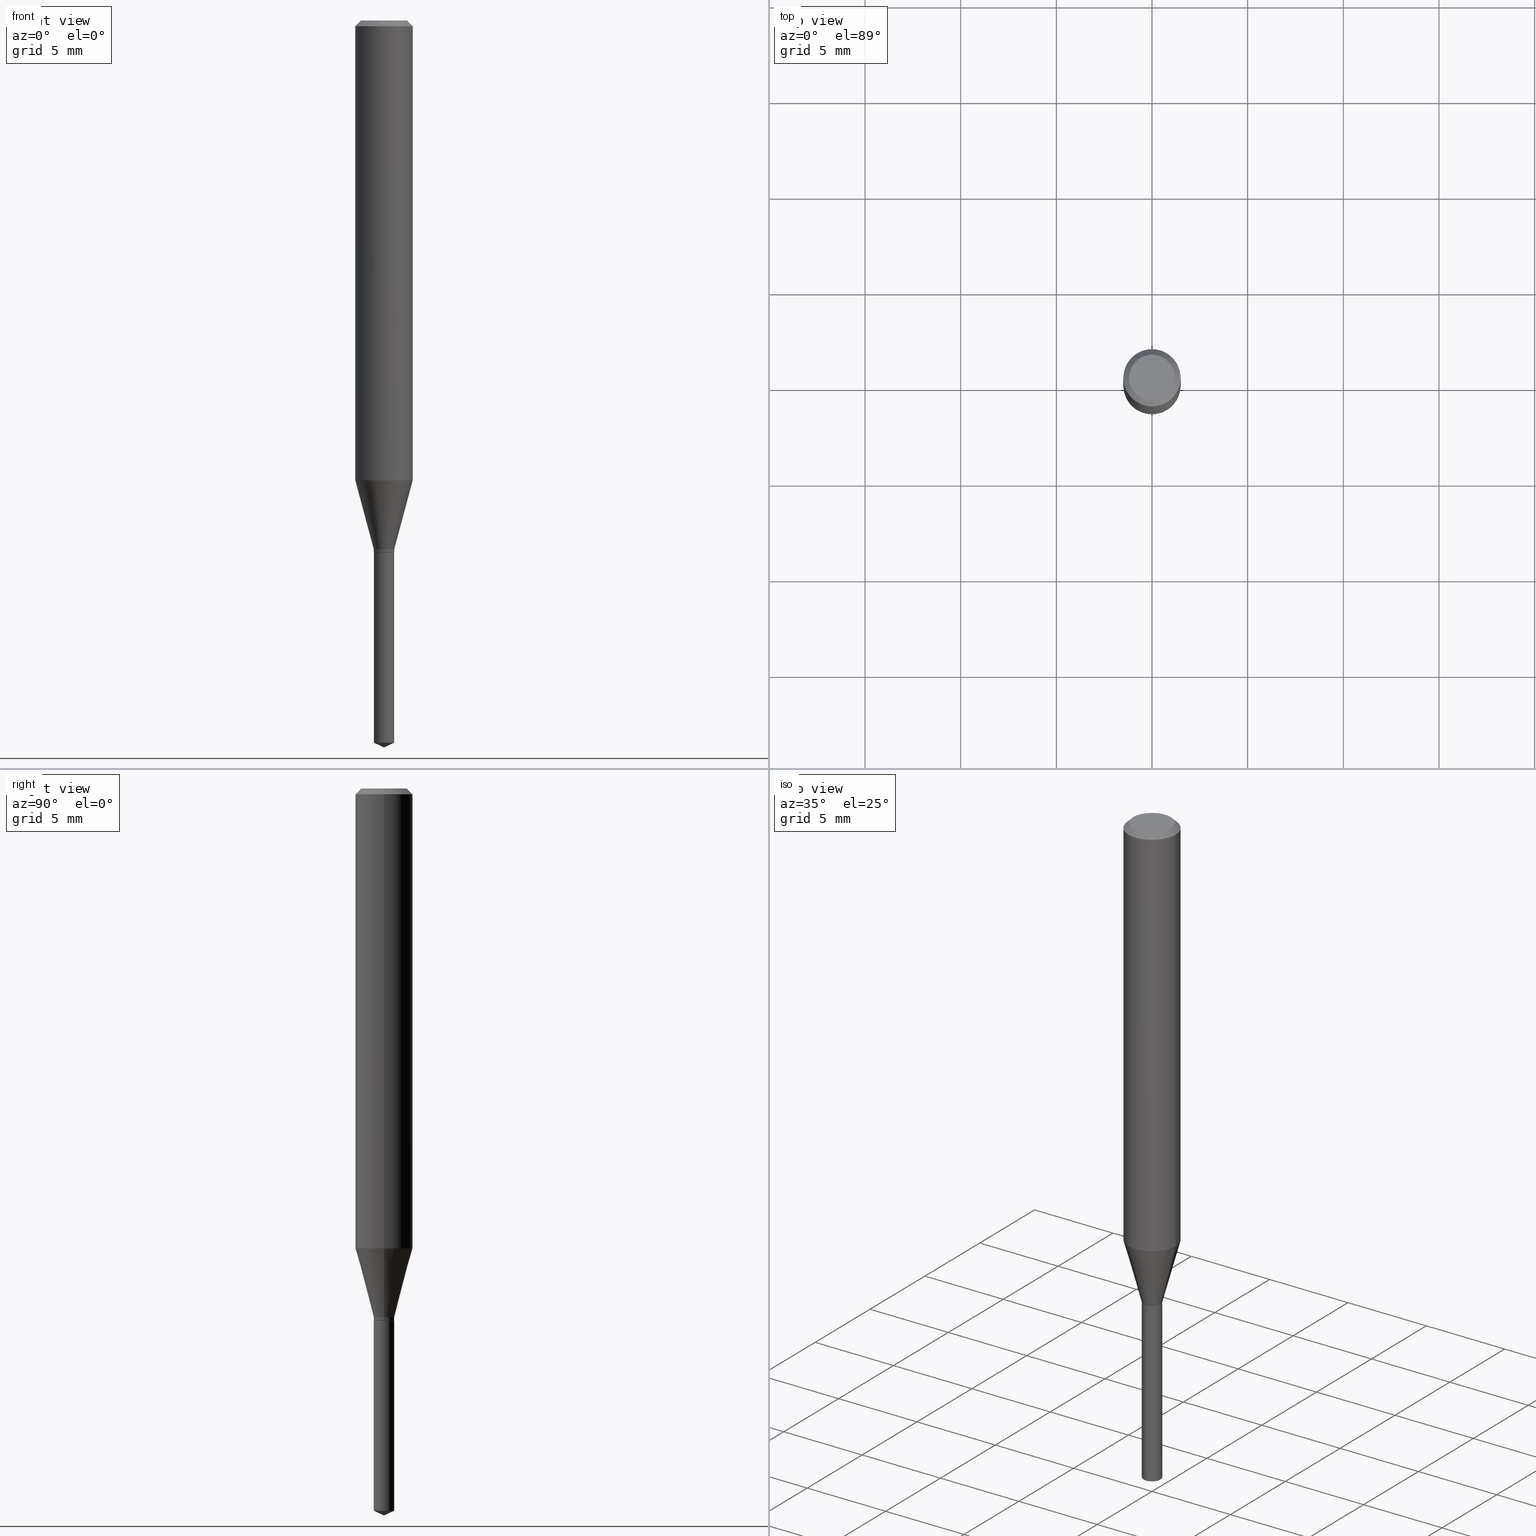
[diagram: canonical four-view strip — front | top / right | iso, engineering-drawing reading convention]
A machine part, canonical four-view strip (front | top / right | iso — engineering-drawing reading convention). The complete STEP part file that produces these views, byte-faithful:
ISO-10303-21;
HEADER;
FILE_DESCRIPTION (( 'STEP AP203' ),
    '1' );
FILE_NAME ('07833.STEP',
    '2024-04-24T04:04:17',
    ( '' ),
    ( '' ),
    'SwSTEP 2.0',
    'SolidWorks 2023',
    '' );
FILE_SCHEMA (( 'CONFIG_CONTROL_DESIGN' ));
ENDSEC;

DATA;
#1 = CARTESIAN_POINT ( 'NONE',  ( 2.888098660104664642E-31, -4.123439461173780879E-17, -0.01181000000000007565 ) ) ;
#2 = DIRECTION ( 'NONE',  ( -2.445468806185136877E-29, 3.491481338843145188E-15, 1.000000000000000000 ) ) ;
#3 = ORIENTED_EDGE ( 'NONE', *, *, #337, .T. ) ;
#4 = AXIS2_PLACEMENT_3D ( 'NONE', #1, #67, #483 ) ;
#5 = AXIS2_PLACEMENT_3D ( 'NONE', #137, #60, #446 ) ;
#6 = ORIENTED_EDGE ( 'NONE', *, *, #249, .F. ) ;
#7 = PLANE ( 'NONE',  #299 ) ;
#8 = DIRECTION ( 'NONE',  ( 1.000000000000000000, -6.982962677686254878E-15, 0.000000000000000000 ) ) ;
#9 = DIRECTION ( 'NONE',  ( 1.000000000000000000, -6.982962677686266711E-15, 4.876185090822587894E-29 ) ) ;
#10 = EDGE_CURVE ( 'NONE', #353, #206, #29, .T. ) ;
#11 = VERTEX_POINT ( 'NONE', #290 ) ;
#12 = FACE_OUTER_BOUND ( 'NONE', #17, .T. ) ;
#13 = AXIS2_PLACEMENT_3D ( 'NONE', #444, #364, #286 ) ;
#14 = EDGE_LOOP ( 'NONE', ( #388, #338, #309, #311 ) ) ;
#15 = ORIENTED_EDGE ( 'NONE', *, *, #298, .F. ) ;
#16 = VERTEX_POINT ( 'NONE', #322 ) ;
#17 = EDGE_LOOP ( 'NONE', ( #21, #459 ) ) ;
#18 = AXIS2_PLACEMENT_3D ( 'NONE', #412, #163, #426 ) ;
#19 = PERSON_AND_ORGANIZATION ( #456, #26 ) ;
#20 = ADVANCED_FACE ( 'NONE', ( #143 ), #258, .T. ) ;
#21 = ORIENTED_EDGE ( 'NONE', *, *, #295, .T. ) ;
#22 = FACE_OUTER_BOUND ( 'NONE', #305, .T. ) ;
#23 = FACE_OUTER_BOUND ( 'NONE', #80, .T. ) ;
#24 = DIMENSIONAL_EXPONENTS ( 1.000000000000000000, 0.000000000000000000, 0.000000000000000000, 0.000000000000000000, 0.000000000000000000, 0.000000000000000000, 0.000000000000000000 ) ;
#25 = VECTOR ( 'NONE', #2, 39.37007874015748143 ) ;
#26 = ORGANIZATION ( 'UNSPECIFIED', 'UNSPECIFIED', '' ) ;
#27 = DIRECTION ( 'NONE',  ( 1.000000000000000000, -6.982962677686255667E-15, 0.000000000000000000 ) ) ;
#28 = APPROVAL_STATUS ( 'not_yet_approved' ) ;
#29 = CIRCLE ( 'NONE', #5, 0.05905000000000000526 ) ;
#30 = DIRECTION ( 'NONE',  ( -0.2588190451025212391, 5.211531920934549464E-15, 0.9659258262890679791 ) ) ;
#31 = CARTESIAN_POINT ( 'NONE',  ( -0.05905000000000000526, -1.253179379049500604E-15, -0.01181000000000007565 ) ) ;
#32 = DATE_TIME_ROLE ( 'classification_date' ) ;
#33 = EDGE_LOOP ( 'NONE', ( #180, #351, #150, #451 ) ) ;
#34 = CARTESIAN_POINT ( 'NONE',  ( 3.658667988020872822E-29, -5.223602213574301462E-15, -1.496099999999999985 ) ) ;
#35 = ORIENTED_EDGE ( 'NONE', *, *, #93, .T. ) ;
#36 = AXIS2_PLACEMENT_3D ( 'NONE', #489, #247, #232 ) ;
#37 = MANIFOLD_SOLID_BREP ( 'Body-Move/Copy2[1]', #237 ) ;
#38 = VERTEX_POINT ( 'NONE', #410 ) ;
#39 = VERTEX_POINT ( 'NONE', #318 ) ;
#40 = MANIFOLD_SOLID_BREP ( 'Body-Move/Copy2[2]', #423 ) ;
#41 = LOCAL_TIME ( 0, 4, 17.00000000000000000, #449 ) ;
#42 = ORIENTED_EDGE ( 'NONE', *, *, #208, .F. ) ;
#43 = ORIENTED_EDGE ( 'NONE', *, *, #139, .T. ) ;
#44 = LINE ( 'NONE', #111, #392 ) ;
#45 = EDGE_LOOP ( 'NONE', ( #158, #146, #131 ) ) ;
#46 = AXIS2_PLACEMENT_3D ( 'NONE', #99, #376, #246 ) ;
#47 = CIRCLE ( 'NONE', #369, 0.05905000000000000526 ) ;
#48 = EDGE_LOOP ( 'NONE', ( #160, #352 ) ) ;
#49 = ORIENTED_EDGE ( 'NONE', *, *, #384, .T. ) ;
#50 = EDGE_LOOP ( 'NONE', ( #128, #230, #296, #303 ) ) ;
#51 = CARTESIAN_POINT ( 'NONE',  ( 2.676565608369631794E-29, -3.821426325363822773E-15, -1.094499999999999806 ) ) ;
#52 = CALENDAR_DATE ( 2024, 24, 4 ) ;
#53 = ORIENTED_EDGE ( 'NONE', *, *, #145, .T. ) ;
#54 = AXIS2_PLACEMENT_3D ( 'NONE', #469, #123, #276 ) ;
#55 = EDGE_CURVE ( 'NONE', #467, #104, #474, .T. ) ;
#56 = VERTEX_POINT ( 'NONE', #281 ) ;
#57 = CARTESIAN_POINT ( 'NONE',  ( -0.02105000000000000621, 1.495692458775011332E-16, -1.035435836498657894E-30 ) ) ;
#58 = VERTEX_POINT ( 'NONE', #291 ) ;
#59 = EDGE_CURVE ( 'NONE', #71, #428, #441, .T. ) ;
#60 = DIRECTION ( 'NONE',  ( -2.445468806185136597E-29, 3.491481338843145583E-15, 1.000000000000000000 ) ) ;
#61 = PERSON_AND_ORGANIZATION ( #456, #26 ) ;
#62 = AXIS2_PLACEMENT_3D ( 'NONE', #271, #82, #233 ) ;
#63 = CC_DESIGN_APPROVAL ( #465, ( #368 ) ) ;
#64 = LINE ( 'NONE', #57, #349 ) ;
#65 = ADVANCED_FACE ( 'NONE', ( #23 ), #75, .T. ) ;
#66 = CYLINDRICAL_SURFACE ( 'NONE', #153, 0.02105000000000000621 ) ;
#67 = DIRECTION ( 'NONE',  ( 2.445468806185136597E-29, -3.491481338843145583E-15, -1.000000000000000000 ) ) ;
#68 = CC_DESIGN_PERSON_AND_ORGANIZATION_ASSIGNMENT ( #283, #372, ( #368 ) ) ;
#69 = ORIENTED_EDGE ( 'NONE', *, *, #227, .T. ) ;
#70 = LINE ( 'NONE', #148, #273 ) ;
#71 = VERTEX_POINT ( 'NONE', #219 ) ;
#72 = CARTESIAN_POINT ( 'NONE',  ( 3.658664905062460986E-29, -5.223606628546217219E-15, -1.496099999999999985 ) ) ;
#73 = ADVANCED_FACE ( 'NONE', ( #455 ), #431, .T. ) ;
#74 = VECTOR ( 'NONE', #161, 39.37007874015748143 ) ;
#75 = CONICAL_SURFACE ( 'NONE', #261, 0.02054999999999999882, 0.7853981633974184140 ) ;
#76 = ORIENTED_EDGE ( 'NONE', *, *, #394, .F. ) ;
#77 = DIRECTION ( 'NONE',  ( -2.445470214571802116E-29, 3.491479321953280158E-15, 1.000000000000000000 ) ) ;
#78 = CARTESIAN_POINT ( 'NONE',  ( 2.675342873966538993E-29, -3.819680584694400481E-15, -1.093999999999999861 ) ) ;
#79 = DIRECTION ( 'NONE',  ( -2.445468806185136597E-29, 3.491481338843145583E-15, 1.000000000000000000 ) ) ;
#80 = EDGE_LOOP ( 'NONE', ( #162, #419, #171, #15 ) ) ;
#81 = AXIS2_PLACEMENT_3D ( 'NONE', #244, #366, #27 ) ;
#82 = DIRECTION ( 'NONE',  ( -2.445470214571802116E-29, 3.491479321953280158E-15, 1.000000000000000000 ) ) ;
#83 = UNCERTAINTY_MEASURE_WITH_UNIT (LENGTH_MEASURE( 1.000000000000000082E-05 ), #490, 'distance_accuracy_value', 'NONE');
#84 = DIRECTION ( 'NONE',  ( 6.982962677686265922E-15, 1.000000000000000000, -3.491479321953280158E-15 ) ) ;
#85 = ADVANCED_FACE ( 'NONE', ( #189 ), #66, .T. ) ;
#86 = APPLICATION_PROTOCOL_DEFINITION ( 'international standard', 'config_control_design', 1994, #362 ) ;
#87 = CIRCLE ( 'NONE', #62, 0.02104999999999999927 ) ;
#88 = EDGE_LOOP ( 'NONE', ( #240, #97, #397 ) ) ;
#89 = ADVANCED_FACE ( 'NONE', ( #106 ), #127, .T. ) ;
#90 = CARTESIAN_POINT ( 'NONE',  ( 0.000000000000000000, 0.000000000000000000, 0.000000000000000000 ) ) ;
#91 = APPROVAL_ROLE ( '' ) ;
#92 = DIRECTION ( 'NONE',  ( 2.438088387897960049E-29, -3.491481338843145188E-15, -1.000000000000000000 ) ) ;
#93 = EDGE_CURVE ( 'NONE', #56, #206, #407, .T. ) ;
#94 = LOCAL_TIME ( 0, 4, 17.00000000000000000, #471 ) ;
#95 = ORIENTED_EDGE ( 'NONE', *, *, #175, .T. ) ;
#96 = DIRECTION ( 'NONE',  ( 1.000000000000000000, -6.982962677686266711E-15, 0.000000000000000000 ) ) ;
#97 = ORIENTED_EDGE ( 'NONE', *, *, #255, .T. ) ;
#98 = PERSON_AND_ORGANIZATION_ROLE ( 'classification_officer' ) ;
#99 = CARTESIAN_POINT ( 'NONE',  ( 2.676565608369631794E-29, -3.821426325363822773E-15, -1.094499999999999806 ) ) ;
#100 = CARTESIAN_POINT ( 'NONE',  ( -1.469913643652595637E-16, -0.02105000000000518956, -1.486284223795837134 ) ) ;
#101 = DIRECTION ( 'NONE',  ( 1.000000000000000000, -6.982962677686257244E-15, 0.000000000000000000 ) ) ;
#102 = AXIS2_PLACEMENT_3D ( 'NONE', #215, #254, #393 ) ;
#103 = DIRECTION ( 'NONE',  ( -1.000000000000000000, 6.982962677686265922E-15, 0.000000000000000000 ) ) ;
#104 = VERTEX_POINT ( 'NONE', #186 ) ;
#105 = LINE ( 'NONE', #194, #25 ) ;
#106 = FACE_OUTER_BOUND ( 'NONE', #242, .T. ) ;
#107 = CARTESIAN_POINT ( 'NONE',  ( 0.02104999999999999927, -3.946421357294406373E-15, -1.088199999999999834 ) ) ;
#108 = APPROVAL_STATUS ( 'not_yet_approved' ) ;
#109 = LENGTH_MEASURE_WITH_UNIT ( LENGTH_MEASURE( 0.02539999999999999897 ), #336 );
#110 = DIRECTION ( 'NONE',  ( 1.000000000000000000, -6.982962677686268288E-15, 0.000000000000000000 ) ) ;
#111 = CARTESIAN_POINT ( 'NONE',  ( -0.02054999999999999882, -3.675409793165121700E-15, -1.094499999999999806 ) ) ;
#112 = FACE_OUTER_BOUND ( 'NONE', #88, .T. ) ;
#113 =( NAMED_UNIT ( * ) SI_UNIT ( $, .STERADIAN. ) SOLID_ANGLE_UNIT ( ) );
#114 = AXIS2_PLACEMENT_3D ( 'NONE', #370, #325, #101 ) ;
#115 = DIRECTION ( 'NONE',  ( -6.982962677686267499E-15, -1.000000000000000000, 0.000000000000000000 ) ) ;
#116 = CC_DESIGN_DATE_AND_TIME_ASSIGNMENT ( #404, #32, ( #167 ) ) ;
#117 = AXIS2_PLACEMENT_3D ( 'NONE', #243, #411, #408 ) ;
#119 = CARTESIAN_POINT ( 'NONE',  ( 8.265746106709734507E-48, -1.180129479067563789E-33, -3.380025165646692144E-19 ) ) ;
#118 = APPROVAL ( #470, 'UNSPECIFIED' ) ;
#120 = ORIENTED_EDGE ( 'NONE', *, *, #418, .F. ) ;
#121 = CARTESIAN_POINT ( 'NONE',  ( 2.676565608369631794E-29, -3.821426325363822773E-15, -1.094499999999999806 ) ) ;
#122 = ORIENTED_EDGE ( 'NONE', *, *, #298, .T. ) ;
#123 = DIRECTION ( 'NONE',  ( -2.445470214571802116E-29, 3.491479321953280158E-15, 1.000000000000000000 ) ) ;
#124 = CYLINDRICAL_SURFACE ( 'NONE', #54, 0.02104999999999999927 ) ;
#125 = AXIS2_PLACEMENT_3D ( 'NONE', #383, #202, #348 ) ;
#126 = AXIS2_PLACEMENT_3D ( 'NONE', #119, #195, #9 ) ;
#127 = CONICAL_SURFACE ( 'NONE', #114, 0.02104999999999999927, 0.2617993877991499629 ) ;
#128 = ORIENTED_EDGE ( 'NONE', *, *, #249, .T. ) ;
#129 = CYLINDRICAL_SURFACE ( 'NONE', #144, 0.02105000000000000621 ) ;
#130 = CALENDAR_DATE ( 2024, 24, 4 ) ;
#131 = ORIENTED_EDGE ( 'NONE', *, *, #59, .F. ) ;
#132 = DIRECTION ( 'NONE',  ( -2.445468806185136597E-29, 3.491481338843145583E-15, 1.000000000000000000 ) ) ;
#133 = CYLINDRICAL_SURFACE ( 'NONE', #151, 0.02104999999999999927 ) ;
#134 = CC_DESIGN_PERSON_AND_ORGANIZATION_ASSIGNMENT ( #234, #315, ( #231 ) ) ;
#135 = CARTESIAN_POINT ( 'NONE',  ( -0.02104999999999999927, -3.649860747051609857E-15, -1.088199999999999834 ) ) ;
#136 = AXIS2_PLACEMENT_3D ( 'NONE', #409, #92, #282 ) ;
#137 = CARTESIAN_POINT ( 'NONE',  ( 2.888098660104664642E-31, -4.123439461173780879E-17, -0.01181000000000007565 ) ) ;
#138 = CARTESIAN_POINT ( 'NONE',  ( 0.000000000000000000, 0.000000000000000000, 0.000000000000000000 ) ) ;
#139 = EDGE_CURVE ( 'NONE', #206, #353, #47, .T. ) ;
#140 = DIRECTION ( 'NONE',  ( 1.000000000000000000, -6.982962677686266711E-15, 4.876176775795936353E-29 ) ) ;
#141 = DIRECTION ( 'NONE',  ( -2.445468806185136597E-29, 3.491481338843145583E-15, 1.000000000000000000 ) ) ;
#142 = PLANE ( 'NONE',  #136 ) ;
#143 = FACE_OUTER_BOUND ( 'NONE', #266, .T. ) ;
#144 = AXIS2_PLACEMENT_3D ( 'NONE', #436, #132, #248 ) ;
#145 = EDGE_CURVE ( 'NONE', #39, #228, #275, .T. ) ;
#146 = ORIENTED_EDGE ( 'NONE', *, *, #334, .T. ) ;
#147 =( NAMED_UNIT ( * ) PLANE_ANGLE_UNIT ( ) SI_UNIT ( $, .RADIAN. ) );
#148 = CARTESIAN_POINT ( 'NONE',  ( -0.05905000000000006771, 4.195754854663396409E-16, -2.904631170795525045E-30 ) ) ;
#149 = CARTESIAN_POINT ( 'NONE',  ( 0.02054999999999999882, -3.964926208390275100E-15, -1.094499999999999806 ) ) ;
#150 = ORIENTED_EDGE ( 'NONE', *, *, #313, .T. ) ;
#151 = AXIS2_PLACEMENT_3D ( 'NONE', #450, #477, #442 ) ;
#152 = VECTOR ( 'NONE', #257, 39.37007874015748143 ) ;
#153 = AXIS2_PLACEMENT_3D ( 'NONE', #399, #332, #185 ) ;
#154 = ORIENTED_EDGE ( 'NONE', *, *, #473, .F. ) ;
#155 = EDGE_CURVE ( 'NONE', #71, #472, #268, .T. ) ;
#156 = EDGE_LOOP ( 'NONE', ( #178, #35, #43, #76 ) ) ;
#157 = CC_DESIGN_PERSON_AND_ORGANIZATION_ASSIGNMENT ( #396, #179, ( #368 ) ) ;
#158 = ORIENTED_EDGE ( 'NONE', *, *, #255, .F. ) ;
#159 = ADVANCED_FACE ( 'NONE', ( #328 ), #133, .T. ) ;
#160 = ORIENTED_EDGE ( 'NONE', *, *, #473, .T. ) ;
#161 = DIRECTION ( 'NONE',  ( -2.445470214571802396E-29, 3.491479321953280158E-15, 1.000000000000000000 ) ) ;
#162 = ORIENTED_EDGE ( 'NONE', *, *, #438, .F. ) ;
#163 = DIRECTION ( 'NONE',  ( -2.445470214571802116E-29, 3.491479321953280158E-15, 1.000000000000000000 ) ) ;
#164 = AXIS2_PLACEMENT_3D ( 'NONE', #51, #209, #176 ) ;
#165 = MECHANICAL_CONTEXT ( 'NONE', #362, 'mechanical' ) ;
#166 = ADVANCED_FACE ( 'NONE', ( #324 ), #377, .T. ) ;
#167 = SECURITY_CLASSIFICATION ( '', '', #484 ) ;
#168 = AXIS2_PLACEMENT_3D ( 'NONE', #251, #443, #140 ) ;
#169 = ORIENTED_EDGE ( 'NONE', *, *, #267, .T. ) ;
#170 = PLANE ( 'NONE',  #211 ) ;
#171 = ORIENTED_EDGE ( 'NONE', *, *, #278, .T. ) ;
#172 = DIRECTION ( 'NONE',  ( 0.000000000000000000, 0.000000000000000000, 1.000000000000000000 ) ) ;
#173 = ADVANCED_FACE ( 'NONE', ( #188 ), #7, .F. ) ;
#174 = CIRCLE ( 'NONE', #429, 0.05905000000000011628 ) ;
#175 = EDGE_CURVE ( 'NONE', #11, #467, #354, .T. ) ;
#176 = DIRECTION ( 'NONE',  ( -6.982962677686267499E-15, -1.000000000000000000, 6.488950103715589928E-15 ) ) ;
#177 = PERSON_AND_ORGANIZATION_ROLE ( 'creator' ) ;
#178 = ORIENTED_EDGE ( 'NONE', *, *, #327, .F. ) ;
#179 = PERSON_AND_ORGANIZATION_ROLE ( 'creator' ) ;
#180 = ORIENTED_EDGE ( 'NONE', *, *, #55, .F. ) ;
#181 = CARTESIAN_POINT ( 'NONE',  ( 2.676565608369631794E-29, -3.821426325363822773E-15, -1.094499999999999806 ) ) ;
#182 = AXIS2_PLACEMENT_3D ( 'NONE', #259, #141, #447 ) ;
#183 = DIRECTION ( 'NONE',  ( -2.445468806185136877E-29, 3.491481338843145188E-15, 1.000000000000000000 ) ) ;
#184 = DIRECTION ( 'NONE',  ( -2.445468806185136597E-29, 3.491481338843145583E-15, 1.000000000000000000 ) ) ;
#185 = DIRECTION ( 'NONE',  ( 1.000000000000000000, -6.982962677686266711E-15, 4.876176775795935793E-29 ) ) ;
#186 = CARTESIAN_POINT ( 'NONE',  ( -0.05905000000000011628, -2.884699848953603761E-15, -0.9463820693123824457 ) ) ;
#187 = ADVANCED_FACE ( 'NONE', ( #466 ), #124, .T. ) ;
#188 = FACE_OUTER_BOUND ( 'NONE', #464, .T. ) ;
#189 = FACE_OUTER_BOUND ( 'NONE', #425, .T. ) ;
#190 = FACE_OUTER_BOUND ( 'NONE', #33, .T. ) ;
#191 = AXIS2_PLACEMENT_3D ( 'NONE', #138, #400, #285 ) ;
#192 = CARTESIAN_POINT ( 'NONE',  ( -0.02104999999999999927, -3.659986042934254578E-15, -1.088199999999999834 ) ) ;
#193 = CARTESIAN_POINT ( 'NONE',  ( 0.05905000000000006771, -4.123439461173745257E-16, 2.879382386107503723E-30 ) ) ;
#194 = CARTESIAN_POINT ( 'NONE',  ( 0.02105000000000000621, -1.469913643652959500E-16, 1.026435211305044745E-30 ) ) ;
#195 = DIRECTION ( 'NONE',  ( -2.445468806185136597E-29, 3.491481338843145583E-15, 1.000000000000000000 ) ) ;
#196 = PRODUCT_DEFINITION_SHAPE ( 'NONE', 'NONE',  #265 ) ;
#197 = ORIENTED_EDGE ( 'NONE', *, *, #313, .F. ) ;
#198 = CIRCLE ( 'NONE', #439, 0.05905000000000011628 ) ;
#199 = ORIENTED_EDGE ( 'NONE', *, *, #418, .T. ) ;
#200 = EDGE_CURVE ( 'NONE', #472, #382, #279, .T. ) ;
#201 = CARTESIAN_POINT ( 'NONE',  ( 2.661159154890665186E-29, -3.799429992929110251E-15, -1.088199999999999834 ) ) ;
#202 = DIRECTION ( 'NONE',  ( -2.445468806185136597E-29, 3.491481338843145583E-15, 1.000000000000000000 ) ) ;
#203 = VECTOR ( 'NONE', #252, 39.37007874015748143 ) ;
#204 = DIRECTION ( 'NONE',  ( -2.438088387897960049E-29, 3.491481338843145188E-15, 1.000000000000000000 ) ) ;
#205 = DESIGN_CONTEXT ( 'detailed design', #401, 'design' ) ;
#206 = VERTEX_POINT ( 'NONE', #398 ) ;
#207 = EDGE_CURVE ( 'NONE', #467, #11, #461, .T. ) ;
#208 = EDGE_CURVE ( 'NONE', #228, #467, #64, .T. ) ;
#209 = DIRECTION ( 'NONE',  ( -2.445470214571802116E-29, 3.491479321953280158E-15, 1.000000000000000000 ) ) ;
#210 = DATE_AND_TIME ( #52, #300 ) ;
#211 = AXIS2_PLACEMENT_3D ( 'NONE', #121, #272, #84 ) ;
#212 = CONICAL_SURFACE ( 'NONE', #274, 84.42940631927372408, 1.134464013796313120 ) ;
#213 = ADVANCED_FACE ( 'NONE', ( #22 ), #129, .T. ) ;
#214 = ORIENTED_EDGE ( 'NONE', *, *, #445, .T. ) ;
#215 = CARTESIAN_POINT ( 'NONE',  ( 2.661159154890665186E-29, -3.799429992929110251E-15, -1.088199999999999834 ) ) ;
#216 = ORIENTED_EDGE ( 'NONE', *, *, #384, .F. ) ;
#217 = LINE ( 'NONE', #107, #415 ) ;
#218 = CONICAL_SURFACE ( 'NONE', #4, 0.05905000000000000526, 0.7853981633974453924 ) ;
#219 = CARTESIAN_POINT ( 'NONE',  ( 1.495692458775374208E-16, 0.02104999999999480897, -1.486284223795837134 ) ) ;
#220 = APPROVAL_PERSON_ORGANIZATION ( #235, #118, #91 ) ;
#221 = LINE ( 'NONE', #287, #152 ) ;
#222 = CC_DESIGN_SECURITY_CLASSIFICATION ( #167, ( #368 ) ) ;
#223 = CARTESIAN_POINT ( 'NONE',  ( 0.05905000000000000526, -4.463468013801467941E-16, -0.01181000000000007565 ) ) ;
#224 = CYLINDRICAL_SURFACE ( 'NONE', #191, 0.05905000000000006771 ) ;
#225 = DIRECTION ( 'NONE',  ( 1.000000000000000000, -6.982962677686255667E-15, 0.000000000000000000 ) ) ;
#226 = LINE ( 'NONE', #365, #367 ) ;
#227 = EDGE_CURVE ( 'NONE', #104, #38, #198, .T. ) ;
#228 = VERTEX_POINT ( 'NONE', #395 ) ;
#229 = DIRECTION ( 'NONE',  ( 1.000000000000000000, -6.982962677686266711E-15, 0.000000000000000000 ) ) ;
#230 = ORIENTED_EDGE ( 'NONE', *, *, #438, .T. ) ;
#231 = PRODUCT ( '07833', '07833', '', ( #165 ) ) ;
#232 = DIRECTION ( 'NONE',  ( 1.000000000000000000, -6.982962677686257244E-15, 0.000000000000000000 ) ) ;
#233 = DIRECTION ( 'NONE',  ( -6.982962677686267499E-15, -1.000000000000000000, 6.488950103715589928E-15 ) ) ;
#234 = PERSON_AND_ORGANIZATION ( #456, #26 ) ;
#235 = PERSON_AND_ORGANIZATION ( #456, #26 ) ;
#236 =( GEOMETRIC_REPRESENTATION_CONTEXT ( 3 ) GLOBAL_UNCERTAINTY_ASSIGNED_CONTEXT ( ( #83 ) ) GLOBAL_UNIT_ASSIGNED_CONTEXT ( ( #490, #147, #113 ) ) REPRESENTATION_CONTEXT ( 'NONE', 'WORKASPACE' ) );
#237 = CLOSED_SHELL ( 'NONE', ( #187, #288, #478, #159, #308 ) ) ;
#238 = DIRECTION ( 'NONE',  ( -2.445468806185136597E-29, 3.491481338843145583E-15, 1.000000000000000000 ) ) ;
#239 = ADVANCED_FACE ( 'NONE', ( #476 ), #142, .F. ) ;
#240 = ORIENTED_EDGE ( 'NONE', *, *, #334, .F. ) ;
#241 = CONICAL_SURFACE ( 'NONE', #36, 0.02104999999999999927, 0.2617993877991499629 ) ;
#242 = EDGE_LOOP ( 'NONE', ( #95, #341, #468, #197 ) ) ;
#243 = CARTESIAN_POINT ( 'NONE',  ( 2.676565608369631794E-29, -3.821426325363822773E-15, -1.094499999999999806 ) ) ;
#244 = CARTESIAN_POINT ( 'NONE',  ( 2.676565608369631794E-29, -3.821426325363822773E-15, -1.094499999999999806 ) ) ;
#245 = CALENDAR_DATE ( 2024, 24, 4 ) ;
#246 = DIRECTION ( 'NONE',  ( 1.000000000000000000, -6.982962677686255667E-15, 0.000000000000000000 ) ) ;
#247 = DIRECTION ( 'NONE',  ( -2.445468806185136597E-29, 3.491481338843145583E-15, 1.000000000000000000 ) ) ;
#248 = DIRECTION ( 'NONE',  ( 1.000000000000000000, -6.982962677686266711E-15, 4.876176775795935793E-29 ) ) ;
#249 = EDGE_CURVE ( 'NONE', #16, #264, #289, .T. ) ;
#250 = CIRCLE ( 'NONE', #182, 0.04724000000000000421 ) ;
#251 = CARTESIAN_POINT ( 'NONE',  ( 0.000000000000000000, 0.000000000000000000, 0.000000000000000000 ) ) ;
#252 = DIRECTION ( 'NONE',  ( -6.328713451373366223E-15, -0.9063077870366479383, 0.4226182617407036046 ) ) ;
#253 = SHAPE_DEFINITION_REPRESENTATION ( #196, #357 ) ;
#254 = DIRECTION ( 'NONE',  ( -2.445468806185136597E-29, 3.491481338843145583E-15, 1.000000000000000000 ) ) ;
#255 = EDGE_CURVE ( 'NONE', #256, #71, #481, .T. ) ;
#256 = VERTEX_POINT ( 'NONE', #34 ) ;
#257 = DIRECTION ( 'NONE',  ( -2.445470214571802396E-29, 3.491479321953280158E-15, 1.000000000000000000 ) ) ;
#258 = CYLINDRICAL_SURFACE ( 'NONE', #168, 0.05905000000000006771 ) ;
#259 = CARTESIAN_POINT ( 'NONE',  ( 8.265746106709734507E-48, -1.180129479067563789E-33, -3.380025165646692144E-19 ) ) ;
#260 = CARTESIAN_POINT ( 'NONE',  ( 1.495692458775374701E-16, 0.02104999999999617941, -1.094500000000000028 ) ) ;
#261 = AXIS2_PLACEMENT_3D ( 'NONE', #181, #479, #225 ) ;
#262 = AXIS2_PLACEMENT_3D ( 'NONE', #345, #77, #115 ) ;
#263 = APPROVAL_PERSON_ORGANIZATION ( #293, #435, #380 ) ;
#264 = VERTEX_POINT ( 'NONE', #453 ) ;
#265 = PRODUCT_DEFINITION ( 'UNKNOWN', '', #368, #205 ) ;
#266 = EDGE_LOOP ( 'NONE', ( #120, #69, #49, #433 ) ) ;
#267 = EDGE_CURVE ( 'NONE', #39, #11, #105, .T. ) ;
#268 = LINE ( 'NONE', #420, #74 ) ;
#269 = CIRCLE ( 'NONE', #117, 0.02054999999999999882 ) ;
#270 = CARTESIAN_POINT ( 'NONE',  ( -9.261968845786000133E-28, 1.322362114038720264E-13, 37.87397874015748300 ) ) ;
#271 = CARTESIAN_POINT ( 'NONE',  ( 2.676565608369631794E-29, -3.821426325363822773E-15, -1.094499999999999806 ) ) ;
#272 = DIRECTION ( 'NONE',  ( 2.445470214571801836E-29, -3.491479321953280158E-15, -1.000000000000000000 ) ) ;
#273 = VECTOR ( 'NONE', #183, 39.37007874015748143 ) ;
#274 = AXIS2_PLACEMENT_3D ( 'NONE', #270, #304, #424 ) ;
#275 = CIRCLE ( 'NONE', #343, 0.02105000000000000621 ) ;
#276 = DIRECTION ( 'NONE',  ( -6.982962677686267499E-15, -1.000000000000000000, 6.488950103715589928E-15 ) ) ;
#277 = DATE_AND_TIME ( #130, #94 ) ;
#278 = EDGE_CURVE ( 'NONE', #16, #39, #417, .T. ) ;
#279 = CIRCLE ( 'NONE', #164, 0.02104999999999999927 ) ;
#280 = CC_DESIGN_DATE_AND_TIME_ASSIGNMENT ( #277, #437, ( #265 ) ) ;
#281 = CARTESIAN_POINT ( 'NONE',  ( 0.04724000000000000421, -3.852183633974369838E-16, -3.380025165621689721E-19 ) ) ;
#282 = DIRECTION ( 'NONE',  ( -1.000000000000000000, 6.982962677686265922E-15, -4.876176775795935793E-29 ) ) ;
#283 = PERSON_AND_ORGANIZATION ( #456, #26 ) ;
#284 = CARTESIAN_POINT ( 'NONE',  ( 2.888098660104664642E-31, -4.123439461173780879E-17, -0.01181000000000007565 ) ) ;
#285 = DIRECTION ( 'NONE',  ( 1.000000000000000000, -6.982962677686266711E-15, 4.876176775795936353E-29 ) ) ;
#286 = DIRECTION ( 'NONE',  ( -6.982962677686267499E-15, -1.000000000000000000, 0.000000000000000000 ) ) ;
#287 = CARTESIAN_POINT ( 'NONE',  ( -1.469913643652691780E-16, -0.02105000000000382260, -1.094499999999999806 ) ) ;
#288 = ADVANCED_FACE ( 'NONE', ( #112 ), #403, .T. ) ;
#289 = CIRCLE ( 'NONE', #81, 0.02054999999999999882 ) ;
#290 = CARTESIAN_POINT ( 'NONE',  ( 0.02104999999999999927, -3.946421357294406373E-15, -1.088199999999999834 ) ) ;
#291 = CARTESIAN_POINT ( 'NONE',  ( -0.04724000000000000421, 3.504923541997677355E-16, -3.380025165670481712E-19 ) ) ;
#292 = APPROVAL_DATE_TIME ( #448, #435 ) ;
#293 = PERSON_AND_ORGANIZATION ( #456, #26 ) ;
#294 = FACE_OUTER_BOUND ( 'NONE', #45, .T. ) ;
#295 = EDGE_CURVE ( 'NONE', #382, #472, #87, .T. ) ;
#296 = ORIENTED_EDGE ( 'NONE', *, *, #145, .F. ) ;
#297 = DIRECTION ( 'NONE',  ( 0.7071067811865263675, -2.468850131082035391E-15, 0.7071067811865686670 ) ) ;
#298 = EDGE_CURVE ( 'NONE', #228, #39, #331, .T. ) ;
#299 = AXIS2_PLACEMENT_3D ( 'NONE', #434, #204, #389 ) ;
#300 = LOCAL_TIME ( 0, 4, 17.00000000000000000, #350 ) ;
#301 = ORIENTED_EDGE ( 'NONE', *, *, #93, .F. ) ;
#302 = VECTOR ( 'NONE', #30, 39.37007874015748854 ) ;
#303 = ORIENTED_EDGE ( 'NONE', *, *, #278, .F. ) ;
#304 = DIRECTION ( 'NONE',  ( -2.445470214571802116E-29, 3.491479321953280158E-15, 1.000000000000000000 ) ) ;
#305 = EDGE_LOOP ( 'NONE', ( #42, #122, #169, #391 ) ) ;
#306 = ORIENTED_EDGE ( 'NONE', *, *, #139, .F. ) ;
#307 = APPROVAL_PERSON_ORGANIZATION ( #61, #465, #487 ) ;
#308 = ADVANCED_FACE ( 'NONE', ( #12 ), #170, .F. ) ;
#309 = ORIENTED_EDGE ( 'NONE', *, *, #317, .T. ) ;
#310 = DIRECTION ( 'NONE',  ( 1.000000000000000000, -6.982962677686257244E-15, 0.000000000000000000 ) ) ;
#311 = ORIENTED_EDGE ( 'NONE', *, *, #200, .F. ) ;
#312 = DIRECTION ( 'NONE',  ( 1.000000000000000000, 0.000000000000000000, 0.000000000000000000 ) ) ;
#313 = EDGE_CURVE ( 'NONE', #11, #38, #217, .T. ) ;
#314 = CC_DESIGN_APPROVAL ( #435, ( #167 ) ) ;
#315 = PERSON_AND_ORGANIZATION_ROLE ( 'design_owner' ) ;
#316 = CARTESIAN_POINT ( 'NONE',  ( 2.314347829236371175E-29, -3.304275334419943649E-15, -0.9463820693123824457 ) ) ;
#317 = EDGE_CURVE ( 'NONE', #428, #382, #221, .T. ) ;
#318 = CARTESIAN_POINT ( 'NONE',  ( 0.02105000000000000621, -3.966671949059696603E-15, -1.093999999999999861 ) ) ;
#319 = PERSON_AND_ORGANIZATION ( #456, #26 ) ;
#320 = AXIS2_PLACEMENT_3D ( 'NONE', #201, #238, #310 ) ;
#321 = CC_DESIGN_APPROVAL ( #118, ( #265 ) ) ;
#322 = CARTESIAN_POINT ( 'NONE',  ( 0.02054999999999999882, -3.964926208390275100E-15, -1.094499999999999806 ) ) ;
#323 = FACE_OUTER_BOUND ( 'NONE', #342, .T. ) ;
#324 = FACE_OUTER_BOUND ( 'NONE', #488, .T. ) ;
#325 = DIRECTION ( 'NONE',  ( -2.445468806185136597E-29, 3.491481338843145583E-15, 1.000000000000000000 ) ) ;
#326 = FACE_OUTER_BOUND ( 'NONE', #156, .T. ) ;
#327 = EDGE_CURVE ( 'NONE', #56, #58, #250, .T. ) ;
#328 = FACE_OUTER_BOUND ( 'NONE', #14, .T. ) ;
#329 = CARTESIAN_POINT ( 'NONE',  ( 2.888098660104664642E-31, -4.123439461173780879E-17, -0.01181000000000007565 ) ) ;
#330 = DIRECTION ( 'NONE',  ( -2.445468806185136597E-29, 3.491481338843145583E-15, 1.000000000000000000 ) ) ;
#331 = CIRCLE ( 'NONE', #125, 0.02105000000000000621 ) ;
#332 = DIRECTION ( 'NONE',  ( -2.445468806185136597E-29, 3.491481338843145583E-15, 1.000000000000000000 ) ) ;
#333 = DIRECTION ( 'NONE',  ( -2.445468806185136877E-29, 3.491481338843145188E-15, 1.000000000000000000 ) ) ;
#334 = EDGE_CURVE ( 'NONE', #256, #428, #374, .T. ) ;
#335 = DIRECTION ( 'NONE',  ( -0.7071067811865454633, 2.468850131082235367E-15, -0.7071067811865495711 ) ) ;
#337 = EDGE_CURVE ( 'NONE', #38, #104, #174, .T. ) ;
#336 =( LENGTH_UNIT ( ) NAMED_UNIT ( * ) SI_UNIT ( $, .METRE. ) );
#338 = ORIENTED_EDGE ( 'NONE', *, *, #59, .T. ) ;
#339 = VECTOR ( 'NONE', #347, 39.37007874015748854 ) ;
#340 = LOCAL_TIME ( 0, 4, 17.00000000000000000, #375 ) ;
#341 = ORIENTED_EDGE ( 'NONE', *, *, #55, .T. ) ;
#342 = EDGE_LOOP ( 'NONE', ( #3, #199, #306, #216 ) ) ;
#343 = AXIS2_PLACEMENT_3D ( 'NONE', #78, #79, #8 ) ;
#344 = ORIENTED_EDGE ( 'NONE', *, *, #10, .T. ) ;
#345 = CARTESIAN_POINT ( 'NONE',  ( 3.634662258201484949E-29, -5.189332841414504652E-15, -1.486284223795837134 ) ) ;
#346 = ORIENTED_EDGE ( 'NONE', *, *, #175, .F. ) ;
#347 = DIRECTION ( 'NONE',  ( 6.439704144417020887E-15, 0.9063077870366510469, 0.4226182617406973319 ) ) ;
#348 = DIRECTION ( 'NONE',  ( 1.000000000000000000, -6.982962677686254878E-15, 0.000000000000000000 ) ) ;
#349 = VECTOR ( 'NONE', #360, 39.37007874015748143 ) ;
#350 = COORDINATED_UNIVERSAL_TIME_OFFSET ( 5, 0, .BEHIND. ) ;
#351 = ORIENTED_EDGE ( 'NONE', *, *, #207, .T. ) ;
#352 = ORIENTED_EDGE ( 'NONE', *, *, #327, .T. ) ;
#353 = VERTEX_POINT ( 'NONE', #31 ) ;
#354 = CIRCLE ( 'NONE', #320, 0.02104999999999999927 ) ;
#355 = APPROVAL_DATE_TIME ( #210, #118 ) ;
#356 = ORIENTED_EDGE ( 'NONE', *, *, #394, .T. ) ;
#357 = ADVANCED_BREP_SHAPE_REPRESENTATION ( '07833', ( #37, #40, #462 ), #236 ) ;
#358 = ORIENTED_EDGE ( 'NONE', *, *, #295, .F. ) ;
#359 = ORIENTED_EDGE ( 'NONE', *, *, #317, .F. ) ;
#360 = DIRECTION ( 'NONE',  ( -2.445468806185136877E-29, 3.491481338843145188E-15, 1.000000000000000000 ) ) ;
#361 = COORDINATED_UNIVERSAL_TIME_OFFSET ( 5, 0, .BEHIND. ) ;
#362 = APPLICATION_CONTEXT ( 'configuration controlled 3d designs of mechanical parts and assemblies' ) ;
#363 = DIRECTION ( 'NONE',  ( 2.445468806185136597E-29, -3.491481338843145583E-15, -1.000000000000000000 ) ) ;
#364 = DIRECTION ( 'NONE',  ( -2.445470214571802116E-29, 3.491479321953280158E-15, 1.000000000000000000 ) ) ;
#365 = CARTESIAN_POINT ( 'NONE',  ( -0.05905000000000000526, 3.711095515056362547E-16, -0.01181000000000007565 ) ) ;
#366 = DIRECTION ( 'NONE',  ( -2.445468806185136597E-29, 3.491481338843145583E-15, 1.000000000000000000 ) ) ;
#367 = VECTOR ( 'NONE', #335, 39.37007874015748143 ) ;
#368 = PRODUCT_DEFINITION_FORMATION_WITH_SPECIFIED_SOURCE ( 'ANY', '', #231, .NOT_KNOWN. ) ;
#369 = AXIS2_PLACEMENT_3D ( 'NONE', #329, #485, #110 ) ;
#370 = CARTESIAN_POINT ( 'NONE',  ( 2.661159154890665186E-29, -3.799429992929110251E-15, -1.088199999999999834 ) ) ;
#371 = CARTESIAN_POINT ( 'NONE',  ( -1.469913643652691780E-16, -0.02105000000000382260, -1.094499999999999806 ) ) ;
#372 = PERSON_AND_ORGANIZATION_ROLE ( 'design_supplier' ) ;
#373 = DIRECTION ( 'NONE',  ( 0.7071067811865454633, -7.319954787623248157E-15, -0.7071067811865495711 ) ) ;
#374 = LINE ( 'NONE', #72, #203 ) ;
#375 = COORDINATED_UNIVERSAL_TIME_OFFSET ( 5, 0, .BEHIND. ) ;
#376 = DIRECTION ( 'NONE',  ( -2.445468806185136597E-29, 3.491481338843145583E-15, 1.000000000000000000 ) ) ;
#377 = CONICAL_SURFACE ( 'NONE', #421, 0.05905000000000000526, 0.7853981633974453924 ) ;
#378 = LINE ( 'NONE', #193, #486 ) ;
#379 = CC_DESIGN_PERSON_AND_ORGANIZATION_ASSIGNMENT ( #19, #177, ( #265 ) ) ;
#380 = APPROVAL_ROLE ( '' ) ;
#381 = ORIENTED_EDGE ( 'NONE', *, *, #155, .T. ) ;
#382 = VERTEX_POINT ( 'NONE', #371 ) ;
#383 = CARTESIAN_POINT ( 'NONE',  ( 2.675342873966538993E-29, -3.819680584694400481E-15, -1.093999999999999861 ) ) ;
#384 = EDGE_CURVE ( 'NONE', #38, #206, #378, .T. ) ;
#385 = APPLICATION_PROTOCOL_DEFINITION ( 'international standard', 'config_control_design', 1994, #401 ) ;
#386 = PRODUCT_RELATED_PRODUCT_CATEGORY ( 'detail', '', ( #231 ) ) ;
#387 = CIRCLE ( 'NONE', #126, 0.04724000000000000421 ) ;
#388 = ORIENTED_EDGE ( 'NONE', *, *, #155, .F. ) ;
#389 = DIRECTION ( 'NONE',  ( 1.000000000000000000, -6.982962677686265922E-15, 4.876176775795935793E-29 ) ) ;
#390 = EDGE_CURVE ( 'NONE', #264, #16, #269, .T. ) ;
#391 = ORIENTED_EDGE ( 'NONE', *, *, #207, .F. ) ;
#392 = VECTOR ( 'NONE', #416, 39.37007874015748143 ) ;
#393 = DIRECTION ( 'NONE',  ( 1.000000000000000000, -6.982962677686257244E-15, 0.000000000000000000 ) ) ;
#394 = EDGE_CURVE ( 'NONE', #58, #353, #226, .T. ) ;
#395 = CARTESIAN_POINT ( 'NONE',  ( -0.02105000000000000621, -3.659986042934254578E-15, -1.093999999999999861 ) ) ;
#396 = PERSON_AND_ORGANIZATION ( #456, #26 ) ;
#397 = ORIENTED_EDGE ( 'NONE', *, *, #445, .F. ) ;
#398 = CARTESIAN_POINT ( 'NONE',  ( 0.05905000000000000526, -4.535783407291119586E-16, -0.01181000000000007565 ) ) ;
#399 = CARTESIAN_POINT ( 'NONE',  ( 0.000000000000000000, 0.000000000000000000, 0.000000000000000000 ) ) ;
#400 = DIRECTION ( 'NONE',  ( -2.445468806185136597E-29, 3.491481338843145583E-15, 1.000000000000000000 ) ) ;
#401 = APPLICATION_CONTEXT ( 'configuration controlled 3d designs of mechanical parts and assemblies' ) ;
#402 = CARTESIAN_POINT ( 'NONE',  ( 3.658668015054778287E-29, -5.223602213574301462E-15, -1.496099999999999985 ) ) ;
#403 = CONICAL_SURFACE ( 'NONE', #18, 84.42940631927372408, 1.134464013796313120 ) ;
#404 = DATE_AND_TIME ( #245, #41 ) ;
#405 = ADVANCED_FACE ( 'NONE', ( #326 ), #218, .T. ) ;
#406 = LOCAL_TIME ( 0, 4, 17.00000000000000000, #361 ) ;
#407 = LINE ( 'NONE', #223, #414 ) ;
#408 = DIRECTION ( 'NONE',  ( 1.000000000000000000, -6.982962677686255667E-15, 0.000000000000000000 ) ) ;
#409 = CARTESIAN_POINT ( 'NONE',  ( 4.132873053354867254E-48, -5.900647395337818946E-34, -1.690012582823346072E-19 ) ) ;
#410 = CARTESIAN_POINT ( 'NONE',  ( 0.05905000000000011628, -3.716619280537318569E-15, -0.9463820693123824457 ) ) ;
#411 = DIRECTION ( 'NONE',  ( -2.445468806185136597E-29, 3.491481338843145583E-15, 1.000000000000000000 ) ) ;
#412 = CARTESIAN_POINT ( 'NONE',  ( -9.261968845786000133E-28, 1.322362114038720264E-13, 37.87397874015748300 ) ) ;
#413 = DIRECTION ( 'NONE',  ( 0.2588190451025212391, 1.565188264969622362E-15, 0.9659258262890679791 ) ) ;
#414 = VECTOR ( 'NONE', #373, 39.37007874015748143 ) ;
#415 = VECTOR ( 'NONE', #413, 39.37007874015748854 ) ;
#416 = DIRECTION ( 'NONE',  ( -0.7071067811865263675, 7.493145998870278430E-15, 0.7071067811865686670 ) ) ;
#417 = LINE ( 'NONE', #149, #458 ) ;
#418 = EDGE_CURVE ( 'NONE', #104, #353, #70, .T. ) ;
#419 = ORIENTED_EDGE ( 'NONE', *, *, #390, .T. ) ;
#420 = CARTESIAN_POINT ( 'NONE',  ( 1.495692458775278066E-16, 0.02104999999999617941, -1.094500000000000028 ) ) ;
#421 = AXIS2_PLACEMENT_3D ( 'NONE', #284, #363, #103 ) ;
#422 = ORIENTED_EDGE ( 'NONE', *, *, #208, .T. ) ;
#423 = CLOSED_SHELL ( 'NONE', ( #73, #405, #427, #89, #85, #213, #432, #20, #166, #239, #173, #65 ) ) ;
#424 = DIRECTION ( 'NONE',  ( -6.982962677686266711E-15, -1.000000000000000000, 3.520397390770479508E-15 ) ) ;
#425 = EDGE_LOOP ( 'NONE', ( #53, #422, #346, #430 ) ) ;
#426 = DIRECTION ( 'NONE',  ( -6.982962677686266711E-15, -1.000000000000000000, 3.520397390770479508E-15 ) ) ;
#427 = ADVANCED_FACE ( 'NONE', ( #323 ), #224, .T. ) ;
#428 = VERTEX_POINT ( 'NONE', #100 ) ;
#429 = AXIS2_PLACEMENT_3D ( 'NONE', #480, #330, #229 ) ;
#430 = ORIENTED_EDGE ( 'NONE', *, *, #267, .F. ) ;
#431 = CONICAL_SURFACE ( 'NONE', #46, 0.02054999999999999882, 0.7853981633974184140 ) ;
#432 = ADVANCED_FACE ( 'NONE', ( #190 ), #241, .T. ) ;
#433 = ORIENTED_EDGE ( 'NONE', *, *, #10, .F. ) ;
#434 = CARTESIAN_POINT ( 'NONE',  ( 2.676565608369631794E-29, -3.821426325363822773E-15, -1.094499999999999806 ) ) ;
#435 = APPROVAL ( #108, 'UNSPECIFIED' ) ;
#436 = CARTESIAN_POINT ( 'NONE',  ( 0.000000000000000000, 0.000000000000000000, 0.000000000000000000 ) ) ;
#437 = DATE_TIME_ROLE ( 'creation_date' ) ;
#438 = EDGE_CURVE ( 'NONE', #264, #228, #44, .T. ) ;
#439 = AXIS2_PLACEMENT_3D ( 'NONE', #316, #184, #96 ) ;
#440 = APPROVAL_DATE_TIME ( #482, #465 ) ;
#441 = CIRCLE ( 'NONE', #13, 0.02104999999999999927 ) ;
#442 = DIRECTION ( 'NONE',  ( -6.982962677686267499E-15, -1.000000000000000000, 6.488950103715589928E-15 ) ) ;
#443 = DIRECTION ( 'NONE',  ( -2.445468806185136597E-29, 3.491481338843145583E-15, 1.000000000000000000 ) ) ;
#444 = CARTESIAN_POINT ( 'NONE',  ( 3.634662258201484949E-29, -5.189332841414504652E-15, -1.486284223795837134 ) ) ;
#445 = EDGE_CURVE ( 'NONE', #428, #71, #475, .T. ) ;
#446 = DIRECTION ( 'NONE',  ( 1.000000000000000000, -6.982962677686268288E-15, 0.000000000000000000 ) ) ;
#447 = DIRECTION ( 'NONE',  ( 1.000000000000000000, -6.982962677686266711E-15, 4.876185090822587894E-29 ) ) ;
#448 = DATE_AND_TIME ( #452, #340 ) ;
#449 = COORDINATED_UNIVERSAL_TIME_OFFSET ( 5, 0, .BEHIND. ) ;
#450 = CARTESIAN_POINT ( 'NONE',  ( 2.676565608369631794E-29, -3.821426325363822773E-15, -1.094499999999999806 ) ) ;
#451 = ORIENTED_EDGE ( 'NONE', *, *, #227, .F. ) ;
#452 = CALENDAR_DATE ( 2024, 24, 4 ) ;
#453 = CARTESIAN_POINT ( 'NONE',  ( -0.02054999999999999882, -3.672760565991010499E-15, -1.094499999999999806 ) ) ;
#454 = CALENDAR_DATE ( 2024, 24, 4 ) ;
#455 = FACE_OUTER_BOUND ( 'NONE', #50, .T. ) ;
#456 = PERSON ( 'UNSPECIFIED', 'UNSPECIFIED', 'UNSPECIFIED', ('UNSPECIFIED'), ('UNSPECIFIED'), ('UNSPECIFIED') ) ;
#457 = CC_DESIGN_PERSON_AND_ORGANIZATION_ASSIGNMENT ( #319, #98, ( #167 ) ) ;
#458 = VECTOR ( 'NONE', #297, 39.37007874015748143 ) ;
#459 = ORIENTED_EDGE ( 'NONE', *, *, #200, .T. ) ;
#460 = ORIENTED_EDGE ( 'NONE', *, *, #390, .F. ) ;
#461 = CIRCLE ( 'NONE', #102, 0.02104999999999999927 ) ;
#462 = AXIS2_PLACEMENT_3D ( 'NONE', #90, #172, #312 ) ;
#463 = EDGE_LOOP ( 'NONE', ( #214, #381, #358, #359 ) ) ;
#464 = EDGE_LOOP ( 'NONE', ( #6, #460 ) ) ;
#465 = APPROVAL ( #28, 'UNSPECIFIED' ) ;
#466 = FACE_OUTER_BOUND ( 'NONE', #463, .T. ) ;
#467 = VERTEX_POINT ( 'NONE', #192 ) ;
#468 = ORIENTED_EDGE ( 'NONE', *, *, #337, .F. ) ;
#469 = CARTESIAN_POINT ( 'NONE',  ( 2.676565608369631794E-29, -3.821426325363822773E-15, -1.094499999999999806 ) ) ;
#470 = APPROVAL_STATUS ( 'not_yet_approved' ) ;
#471 = COORDINATED_UNIVERSAL_TIME_OFFSET ( 5, 0, .BEHIND. ) ;
#472 = VERTEX_POINT ( 'NONE', #260 ) ;
#473 = EDGE_CURVE ( 'NONE', #58, #56, #387, .T. ) ;
#474 = LINE ( 'NONE', #135, #302 ) ;
#475 = CIRCLE ( 'NONE', #262, 0.02104999999999999927 ) ;
#476 = FACE_OUTER_BOUND ( 'NONE', #48, .T. ) ;
#477 = DIRECTION ( 'NONE',  ( -2.445470214571802116E-29, 3.491479321953280158E-15, 1.000000000000000000 ) ) ;
#478 = ADVANCED_FACE ( 'NONE', ( #294 ), #212, .T. ) ;
#479 = DIRECTION ( 'NONE',  ( -2.445468806185136597E-29, 3.491481338843145583E-15, 1.000000000000000000 ) ) ;
#480 = CARTESIAN_POINT ( 'NONE',  ( 2.314347829236371175E-29, -3.304275334419943649E-15, -0.9463820693123824457 ) ) ;
#481 = LINE ( 'NONE', #402, #339 ) ;
#482 = DATE_AND_TIME ( #454, #406 ) ;
#483 = DIRECTION ( 'NONE',  ( -1.000000000000000000, 6.982962677686265922E-15, 0.000000000000000000 ) ) ;
#484 = SECURITY_CLASSIFICATION_LEVEL ( 'unclassified' ) ;
#485 = DIRECTION ( 'NONE',  ( -2.445468806185136597E-29, 3.491481338843145583E-15, 1.000000000000000000 ) ) ;
#486 = VECTOR ( 'NONE', #333, 39.37007874015748143 ) ;
#487 = APPROVAL_ROLE ( '' ) ;
#488 = EDGE_LOOP ( 'NONE', ( #301, #154, #356, #344 ) ) ;
#489 = CARTESIAN_POINT ( 'NONE',  ( 2.661159154890665186E-29, -3.799429992929110251E-15, -1.088199999999999834 ) ) ;
#490 =( CONVERSION_BASED_UNIT ( 'INCH', #109 ) LENGTH_UNIT ( ) NAMED_UNIT ( #24 ) );
ENDSEC;
END-ISO-10303-21;
